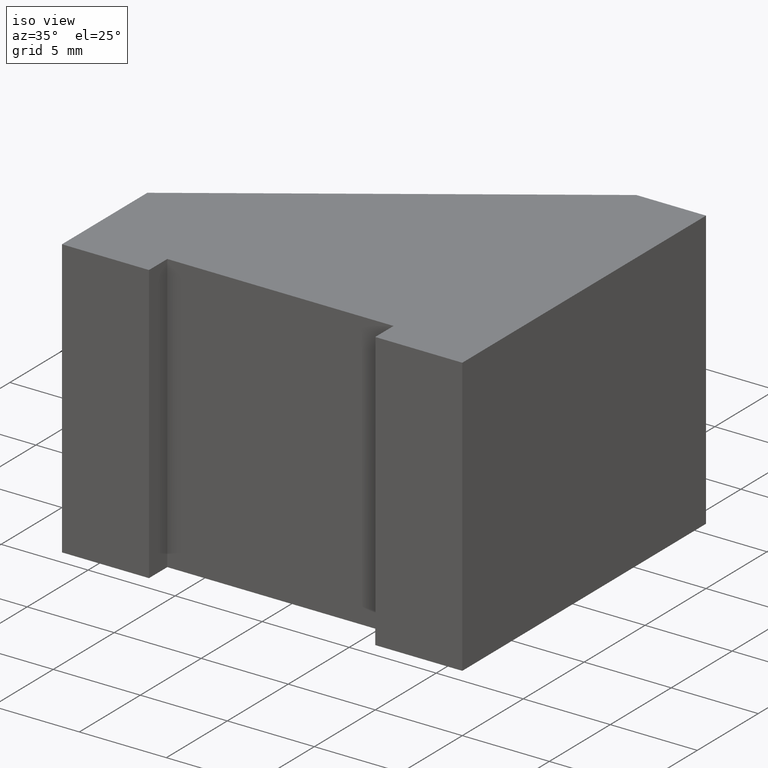
[diagram: clean part render]
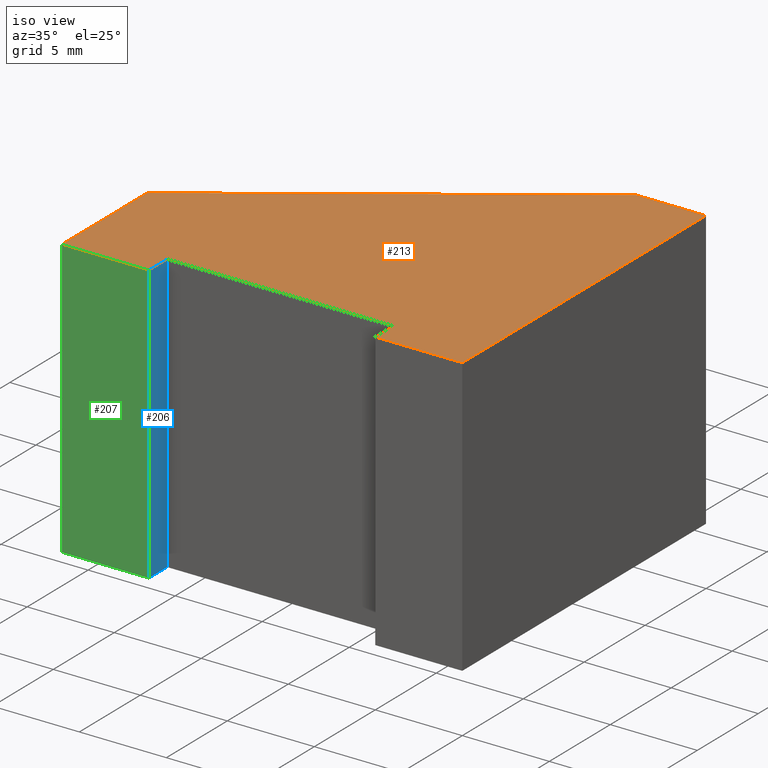
[diagram: same view with three faces highlighted in distinct colors, each labeled with its STEP entity id]
A machine part, iso view with three faces highlighted in distinct colors.
Their STEP definitions:

[orange] entity #213 — the highlighted planar face has unit normal (0, 0, 1).
#27=FACE_OUTER_BOUND('',#38,.T.);
#38=EDGE_LOOP('',(#183,#184,#185,#186,#187,#188,#189,#190,#191));
#48=LINE('',#322,#75);
#51=LINE('',#327,#78);
#53=LINE('',#331,#80);
#55=LINE('',#335,#82);
#57=LINE('',#339,#84);
#59=LINE('',#343,#86);
#61=LINE('',#347,#88);
#63=LINE('',#351,#90);
#65=LINE('',#354,#92);
#75=VECTOR('',#263,10.);
#78=VECTOR('',#268,10.);
#80=VECTOR('',#272,10.);
#82=VECTOR('',#276,10.);
#84=VECTOR('',#280,10.);
#86=VECTOR('',#284,10.);
#88=VECTOR('',#288,10.);
#90=VECTOR('',#292,10.);
#92=VECTOR('',#296,10.);
#102=VERTEX_POINT('',#320);
#103=VERTEX_POINT('',#321);
#104=VERTEX_POINT('',#326);
#105=VERTEX_POINT('',#330);
#106=VERTEX_POINT('',#334);
#107=VERTEX_POINT('',#338);
#108=VERTEX_POINT('',#342);
#109=VERTEX_POINT('',#346);
#110=VERTEX_POINT('',#350);
#120=EDGE_CURVE('',#102,#103,#48,.T.);
#123=EDGE_CURVE('',#103,#104,#51,.T.);
#125=EDGE_CURVE('',#104,#105,#53,.T.);
#127=EDGE_CURVE('',#105,#106,#55,.T.);
#129=EDGE_CURVE('',#106,#107,#57,.T.);
#131=EDGE_CURVE('',#107,#108,#59,.T.);
#133=EDGE_CURVE('',#108,#109,#61,.T.);
#135=EDGE_CURVE('',#109,#110,#63,.T.);
#137=EDGE_CURVE('',#110,#102,#65,.T.);
#183=ORIENTED_EDGE('',*,*,#120,.F.);
#184=ORIENTED_EDGE('',*,*,#137,.F.);
#185=ORIENTED_EDGE('',*,*,#135,.F.);
#186=ORIENTED_EDGE('',*,*,#133,.F.);
#187=ORIENTED_EDGE('',*,*,#131,.F.);
#188=ORIENTED_EDGE('',*,*,#129,.F.);
#189=ORIENTED_EDGE('',*,*,#127,.F.);
#190=ORIENTED_EDGE('',*,*,#125,.F.);
#191=ORIENTED_EDGE('',*,*,#123,.F.);
#202=PLANE('',#247);
#213=ADVANCED_FACE('',(#27),#202,.T.);
#247=AXIS2_PLACEMENT_3D('',#355,#297,#298);
#263=DIRECTION('',(2.22044604925031E-15,1.,0.));
#268=DIRECTION('',(-1.,0.,0.));
#272=DIRECTION('',(7.40148683083438E-16,-1.,0.));
#276=DIRECTION('',(-1.,0.,0.));
#280=DIRECTION('',(3.1720657846433E-16,1.,0.));
#284=DIRECTION('',(0.825307261249832,0.56468391559199,0.));
#288=DIRECTION('',(1.,1.11022302462516E-15,0.));
#292=DIRECTION('',(4.44089209850063E-16,-1.,0.));
#296=DIRECTION('',(-1.,0.,0.));
#297=DIRECTION('center_axis',(0.,0.,1.));
#298=DIRECTION('ref_axis',(1.,0.,0.));
#320=CARTESIAN_POINT('',(6.5,0.,8.));
#321=CARTESIAN_POINT('',(6.5,1.5,8.));
#322=CARTESIAN_POINT('',(6.5,0.,8.));
#326=CARTESIAN_POINT('',(-6.5,1.5,8.));
#327=CARTESIAN_POINT('',(6.5,1.5,8.));
#330=CARTESIAN_POINT('',(-6.5,0.,8.));
#331=CARTESIAN_POINT('',(-6.5,1.5,8.));
#334=CARTESIAN_POINT('',(-11.5,0.,8.));
#335=CARTESIAN_POINT('',(-6.5,0.,8.));
#338=CARTESIAN_POINT('',(-11.5,7.,8.));
#339=CARTESIAN_POINT('',(-11.5,0.,8.));
#342=CARTESIAN_POINT('',(7.49999999999999,20.,8.));
#343=CARTESIAN_POINT('',(-11.5,7.,8.));
#346=CARTESIAN_POINT('',(11.5,20.,8.));
#347=CARTESIAN_POINT('',(7.49999999999999,20.,8.));
#350=CARTESIAN_POINT('',(11.5,0.,8.));
#351=CARTESIAN_POINT('',(11.5,20.,8.));
#354=CARTESIAN_POINT('',(11.5,0.,8.));
#355=CARTESIAN_POINT('Origin',(1.76772664463683,7.96087948512347,8.));

[blue] entity #206 — the highlighted planar face has unit normal (1, 0, 0).
#20=FACE_OUTER_BOUND('',#31,.T.);
#31=EDGE_LOOP('',(#155,#156,#157,#158));
#43=LINE('',#311,#70);
#52=LINE('',#328,#79);
#53=LINE('',#331,#80);
#54=LINE('',#332,#81);
#70=VECTOR('',#256,10.);
#79=VECTOR('',#269,10.);
#80=VECTOR('',#272,10.);
#81=VECTOR('',#273,10.);
#97=VERTEX_POINT('',#308);
#98=VERTEX_POINT('',#310);
#104=VERTEX_POINT('',#326);
#105=VERTEX_POINT('',#330);
#115=EDGE_CURVE('',#98,#97,#43,.T.);
#124=EDGE_CURVE('',#104,#97,#52,.T.);
#125=EDGE_CURVE('',#104,#105,#53,.T.);
#126=EDGE_CURVE('',#105,#98,#54,.T.);
#155=ORIENTED_EDGE('',*,*,#125,.T.);
#156=ORIENTED_EDGE('',*,*,#126,.T.);
#157=ORIENTED_EDGE('',*,*,#115,.T.);
#158=ORIENTED_EDGE('',*,*,#124,.F.);
#195=PLANE('',#240);
#206=ADVANCED_FACE('',(#20),#195,.T.);
#240=AXIS2_PLACEMENT_3D('',#329,#270,#271);
#256=DIRECTION('',(-7.40148683083438E-16,1.,0.));
#269=DIRECTION('',(0.,0.,-1.));
#270=DIRECTION('center_axis',(1.,7.40148683083438E-16,0.));
#271=DIRECTION('ref_axis',(0.,0.,-1.));
#272=DIRECTION('',(7.40148683083438E-16,-1.,0.));
#273=DIRECTION('',(0.,0.,-1.));
#308=CARTESIAN_POINT('',(-6.5,1.5,-8.));
#310=CARTESIAN_POINT('',(-6.5,0.,-8.));
#311=CARTESIAN_POINT('',(-6.5,1.5,-8.));
#326=CARTESIAN_POINT('',(-6.5,1.5,8.));
#328=CARTESIAN_POINT('',(-6.5,1.5,0.));
#329=CARTESIAN_POINT('Origin',(-6.5,1.5,0.));
#330=CARTESIAN_POINT('',(-6.5,0.,8.));
#331=CARTESIAN_POINT('',(-6.5,1.5,8.));
#332=CARTESIAN_POINT('',(-6.5,0.,0.));

[green] entity #207 — the highlighted planar face has unit normal (0, -1, 0).
#21=FACE_OUTER_BOUND('',#32,.T.);
#32=EDGE_LOOP('',(#159,#160,#161,#162));
#44=LINE('',#313,#71);
#54=LINE('',#332,#81);
#55=LINE('',#335,#82);
#56=LINE('',#336,#83);
#71=VECTOR('',#257,10.);
#81=VECTOR('',#273,10.);
#82=VECTOR('',#276,10.);
#83=VECTOR('',#277,10.);
#98=VERTEX_POINT('',#310);
#99=VERTEX_POINT('',#312);
#105=VERTEX_POINT('',#330);
#106=VERTEX_POINT('',#334);
#116=EDGE_CURVE('',#99,#98,#44,.T.);
#126=EDGE_CURVE('',#105,#98,#54,.T.);
#127=EDGE_CURVE('',#105,#106,#55,.T.);
#128=EDGE_CURVE('',#106,#99,#56,.T.);
#159=ORIENTED_EDGE('',*,*,#127,.T.);
#160=ORIENTED_EDGE('',*,*,#128,.T.);
#161=ORIENTED_EDGE('',*,*,#116,.T.);
#162=ORIENTED_EDGE('',*,*,#126,.F.);
#196=PLANE('',#241);
#207=ADVANCED_FACE('',(#21),#196,.T.);
#241=AXIS2_PLACEMENT_3D('',#333,#274,#275);
#257=DIRECTION('',(1.,0.,0.));
#273=DIRECTION('',(0.,0.,-1.));
#274=DIRECTION('center_axis',(0.,-1.,0.));
#275=DIRECTION('ref_axis',(0.,0.,-1.));
#276=DIRECTION('',(-1.,0.,0.));
#277=DIRECTION('',(0.,0.,-1.));
#310=CARTESIAN_POINT('',(-6.5,0.,-8.));
#312=CARTESIAN_POINT('',(-11.5,0.,-8.));
#313=CARTESIAN_POINT('',(-6.5,0.,-8.));
#330=CARTESIAN_POINT('',(-6.5,0.,8.));
#332=CARTESIAN_POINT('',(-6.5,0.,0.));
#333=CARTESIAN_POINT('Origin',(-6.5,0.,0.));
#334=CARTESIAN_POINT('',(-11.5,0.,8.));
#335=CARTESIAN_POINT('',(-6.5,0.,8.));
#336=CARTESIAN_POINT('',(-11.5,0.,0.));